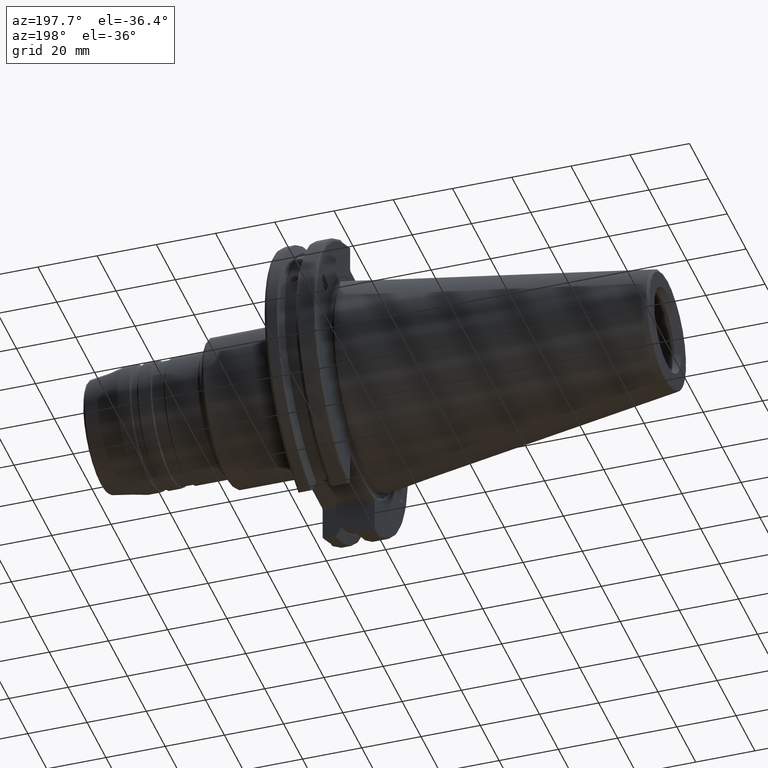
[diagram: clean part render]
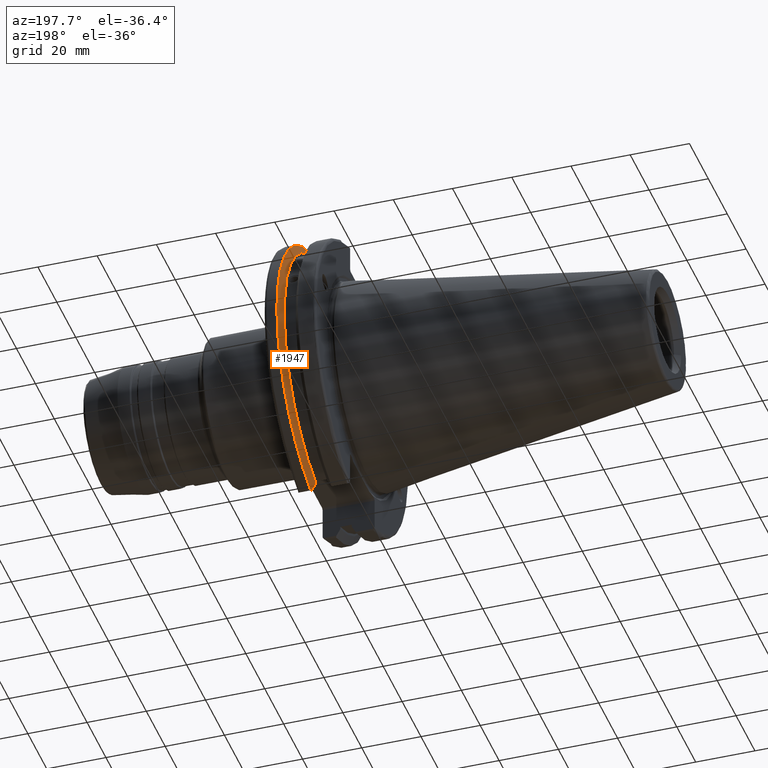
[diagram: same view with one face highlighted and labeled with its STEP entity id]
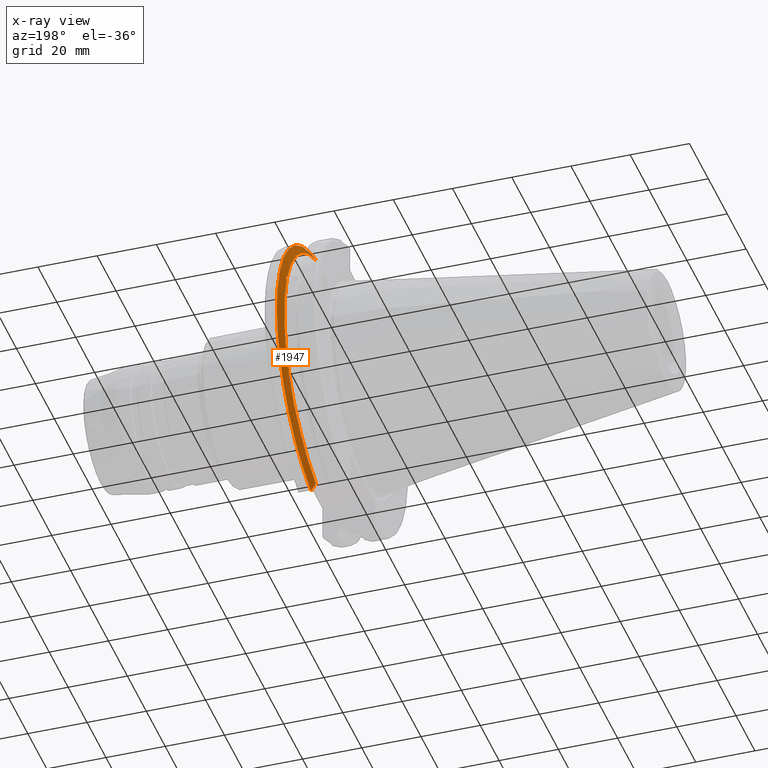
[diagram: x-ray of the same camera — body ghosted, the highlighted face saturated]
A machine part, auxiliary view. The second image highlights one B-rep face of the part: STEP entity #1947.
The next image is the same camera in x-ray: the body ghosted, the highlighted face saturated — about 1% of this face is hidden behind the body in this view.
In plain terms, the highlighted conical surface has half-angle 60 deg.
Its self-contained STEP definition (entity closure, byte-faithful):
#23=(
BOUNDED_CURVE()
B_SPLINE_CURVE(2,(#3605,#3606,#3607),.UNSPECIFIED.,.F.,.F.)
B_SPLINE_CURVE_WITH_KNOTS((3,3),(0.325260944932418,0.390084992222202),
 .UNSPECIFIED.)
CURVE()
GEOMETRIC_REPRESENTATION_ITEM()
RATIONAL_B_SPLINE_CURVE((1.00019140645959,1.00011477674843,1.))
REPRESENTATION_ITEM('')
);
#24=(
BOUNDED_CURVE()
B_SPLINE_CURVE(2,(#3622,#3623,#3624),.UNSPECIFIED.,.F.,.F.)
B_SPLINE_CURVE_WITH_KNOTS((3,3),(0.0558332664502613,0.331657177124503),
 .UNSPECIFIED.)
CURVE()
GEOMETRIC_REPRESENTATION_ITEM()
RATIONAL_B_SPLINE_CURVE((1.00012873637141,1.00038235575535,1.))
REPRESENTATION_ITEM('')
);
#31=(
BOUNDED_CURVE()
B_SPLINE_CURVE(2,(#3822,#3823,#3824),.UNSPECIFIED.,.F.,.F.)
B_SPLINE_CURVE_WITH_KNOTS((3,3),(0.,0.275823910675342),.UNSPECIFIED.)
CURVE()
GEOMETRIC_REPRESENTATION_ITEM()
RATIONAL_B_SPLINE_CURVE((1.,1.00038235575444,1.0001287363711))
REPRESENTATION_ITEM('')
);
#32=(
BOUNDED_CURVE()
B_SPLINE_CURVE(2,(#3839,#3840,#3841),.UNSPECIFIED.,.F.,.F.)
B_SPLINE_CURVE_WITH_KNOTS((3,3),(0.,0.0648240472896818),.UNSPECIFIED.)
CURVE()
GEOMETRIC_REPRESENTATION_ITEM()
RATIONAL_B_SPLINE_CURVE((1.,1.00011477674878,1.00019140646017))
REPRESENTATION_ITEM('')
);
#54=B_SPLINE_CURVE_WITH_KNOTS('',3,(#3444,#3445,#3446,#3447,#3448,#3449,
#3450,#3451),.UNSPECIFIED.,.F.,.F.,(4,2,2,4),(0.42671286835872,0.441644498666906,
0.480313313223129,0.518982127779353),.UNSPECIFIED.);
#58=B_SPLINE_CURVE_WITH_KNOTS('',3,(#3506,#3507,#3508,#3509,#3510,#3511,
#3512,#3513),.UNSPECIFIED.,.F.,.F.,(4,2,2,4),(0.518982127779353,0.557650942335577,
0.596319756891801,0.611251387199985),.UNSPECIFIED.);
#145=CONICAL_SURFACE('',#2197,47.8172386482472,1.0471975511966);
#481=FACE_OUTER_BOUND('',#604,.T.);
#604=EDGE_LOOP('',(#1760,#1761,#1762,#1763,#1764,#1765,#1766,#1767,#1768));
#720=CIRCLE('',#2139,46.4219772964944);
#738=CIRCLE('',#2190,49.2125);
#741=CIRCLE('',#2198,46.4219772964944);
#869=VERTEX_POINT('',#3441);
#870=VERTEX_POINT('',#3443);
#877=VERTEX_POINT('',#3504);
#886=VERTEX_POINT('',#3546);
#896=VERTEX_POINT('',#3602);
#897=VERTEX_POINT('',#3604);
#938=VERTEX_POINT('',#3819);
#939=VERTEX_POINT('',#3821);
#942=VERTEX_POINT('',#3837);
#1111=EDGE_CURVE('',#870,#869,#54,.T.);
#1119=EDGE_CURVE('',#869,#877,#58,.T.);
#1131=EDGE_CURVE('',#886,#870,#720,.T.);
#1147=EDGE_CURVE('',#896,#897,#23,.T.);
#1153=EDGE_CURVE('',#896,#886,#24,.T.);
#1214=EDGE_CURVE('',#939,#938,#31,.T.);
#1222=EDGE_CURVE('',#942,#938,#32,.T.);
#1223=EDGE_CURVE('',#897,#942,#738,.T.);
#1229=EDGE_CURVE('',#877,#939,#741,.T.);
#1760=ORIENTED_EDGE('',*,*,#1111,.T.);
#1761=ORIENTED_EDGE('',*,*,#1119,.T.);
#1762=ORIENTED_EDGE('',*,*,#1229,.T.);
#1763=ORIENTED_EDGE('',*,*,#1214,.T.);
#1764=ORIENTED_EDGE('',*,*,#1222,.F.);
#1765=ORIENTED_EDGE('',*,*,#1223,.F.);
#1766=ORIENTED_EDGE('',*,*,#1147,.F.);
#1767=ORIENTED_EDGE('',*,*,#1153,.T.);
#1768=ORIENTED_EDGE('',*,*,#1131,.T.);
#1947=ADVANCED_FACE('',(#481),#145,.T.);
#2139=AXIS2_PLACEMENT_3D('',#3547,#2584,#2585);
#2190=AXIS2_PLACEMENT_3D('',#3843,#2733,#2734);
#2197=AXIS2_PLACEMENT_3D('',#3856,#2750,#2751);
#2198=AXIS2_PLACEMENT_3D('',#3857,#2752,#2753);
#2584=DIRECTION('center_axis',(1.,0.,0.));
#2585=DIRECTION('ref_axis',(0.,0.,-1.));
#2733=DIRECTION('center_axis',(1.,0.,0.));
#2734=DIRECTION('ref_axis',(0.,0.,-1.));
#2750=DIRECTION('center_axis',(1.,0.,0.));
#2751=DIRECTION('ref_axis',(0.,1.,0.));
#2752=DIRECTION('center_axis',(1.,0.,0.));
#2753=DIRECTION('ref_axis',(0.,0.,-1.));
#3441=CARTESIAN_POINT('',(13.2341,43.923494649906,15.9868446375166));
#3443=CARTESIAN_POINT('',(13.0491,43.9096390749305,15.0646464421033));
#3444=CARTESIAN_POINT('Ctrl Pts',(13.0491,43.9096390749305,15.0646464421033));
#3445=CARTESIAN_POINT('Ctrl Pts',(13.0660815609661,43.9250360001461,15.1104047527575));
#3446=CARTESIAN_POINT('Ctrl Pts',(13.0821132459668,43.9385582852181,15.1564111356409));
#3447=CARTESIAN_POINT('Ctrl Pts',(13.1358132615496,43.9797830409459,15.3217566390709));
#3448=CARTESIAN_POINT('Ctrl Pts',(13.1719838933644,43.9989016655819,15.4570249042868));
#3449=CARTESIAN_POINT('Ctrl Pts',(13.2212913174802,43.9931221605126,15.7289849146254));
#3450=CARTESIAN_POINT('Ctrl Pts',(13.2341,43.9675796948952,15.8657219718732));
#3451=CARTESIAN_POINT('Ctrl Pts',(13.2341,43.923494649906,15.9868446375166));
#3504=CARTESIAN_POINT('',(13.0491,43.3201030900029,16.6843832486479));
#3506=CARTESIAN_POINT('Ctrl Pts',(13.2341,43.923494649906,15.9868446375166));
#3507=CARTESIAN_POINT('Ctrl Pts',(13.2341,43.8794096049169,16.10796730316));
#3508=CARTESIAN_POINT('Ctrl Pts',(13.2212913174802,43.8110833825828,16.2291323464528));
#3509=CARTESIAN_POINT('Ctrl Pts',(13.1719838933644,43.6406982153492,16.441180795372));
#3510=CARTESIAN_POINT('Ctrl Pts',(13.1358132615496,43.5391037343221,16.5325130832406));
#3511=CARTESIAN_POINT('Ctrl Pts',(13.0821132459668,43.4012416983557,16.6326763251437));
#3512=CARTESIAN_POINT('Ctrl Pts',(13.0660815609661,43.3613106941341,16.6592273018006));
#3513=CARTESIAN_POINT('Ctrl Pts',(13.0491,43.3201030900029,16.6843832486479));
#3546=CARTESIAN_POINT('',(13.0491,12.95,-44.5791147973605));
#3547=CARTESIAN_POINT('Origin',(13.0491,0.,0.));
#3602=CARTESIAN_POINT('',(14.3818103943757,12.95,-46.9780755322918));
#3604=CARTESIAN_POINT('',(14.6602090340487,13.4317035994433,-47.3440544806494));
#3605=CARTESIAN_POINT('Ctrl Pts',(14.3818103943757,12.95,-46.9780755322918));
#3606=CARTESIAN_POINT('Ctrl Pts',(14.5199310333618,13.1896660169966,-47.1601640966265));
#3607=CARTESIAN_POINT('Ctrl Pts',(14.6602090340487,13.4317035994433,-47.3440544806494));
#3622=CARTESIAN_POINT('Ctrl Pts',(14.3818103943757,12.95,-46.9780755322918));
#3623=CARTESIAN_POINT('Ctrl Pts',(13.6979955094591,12.95,-45.7494966802465));
#3624=CARTESIAN_POINT('Ctrl Pts',(13.0491,12.95,-44.5791147973605));
#3819=CARTESIAN_POINT('',(14.3818103943757,12.95,46.9780755322918));
#3821=CARTESIAN_POINT('',(13.0491,12.95,44.5791147973605));
#3822=CARTESIAN_POINT('Ctrl Pts',(13.0491,12.95,44.5791147973605));
#3823=CARTESIAN_POINT('Ctrl Pts',(13.6979955094449,12.95,45.749496680221));
#3824=CARTESIAN_POINT('Ctrl Pts',(14.3818103943757,12.95,46.9780755322918));
#3837=CARTESIAN_POINT('',(14.6602090340487,13.4317035994433,47.3440544806494));
#3839=CARTESIAN_POINT('Ctrl Pts',(14.6602090340487,13.4317035994433,47.3440544806494));
#3840=CARTESIAN_POINT('Ctrl Pts',(14.5199310333617,13.1896660169965,47.1601640966263));
#3841=CARTESIAN_POINT('Ctrl Pts',(14.3818103943757,12.95,46.9780755322918));
#3843=CARTESIAN_POINT('Origin',(14.6602090340487,0.,0.));
#3856=CARTESIAN_POINT('Origin',(13.8546545170244,0.,0.));
#3857=CARTESIAN_POINT('Origin',(13.0491,0.,0.));